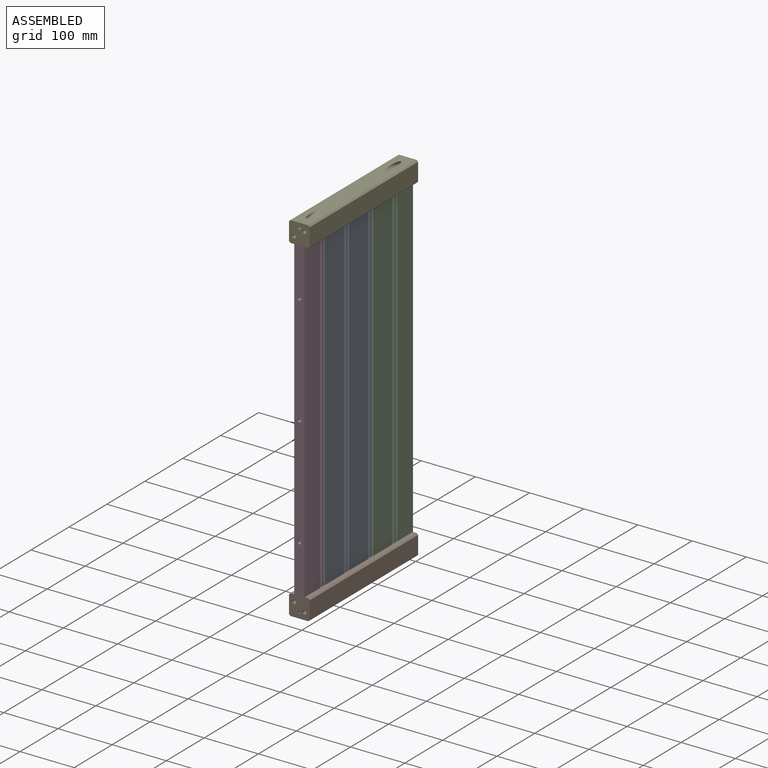
[diagram: assembled view]
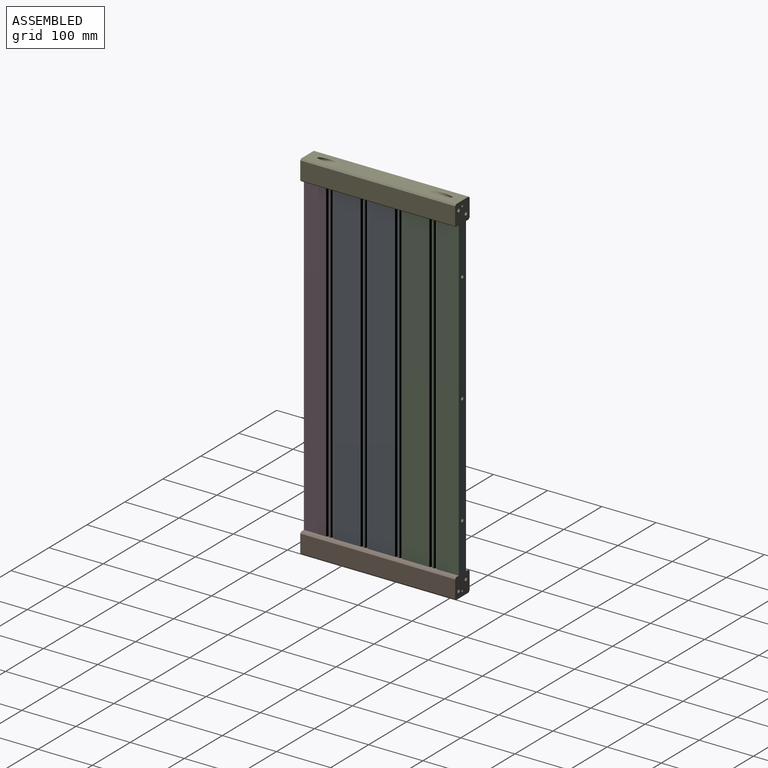
[diagram: assembled view, second angle]
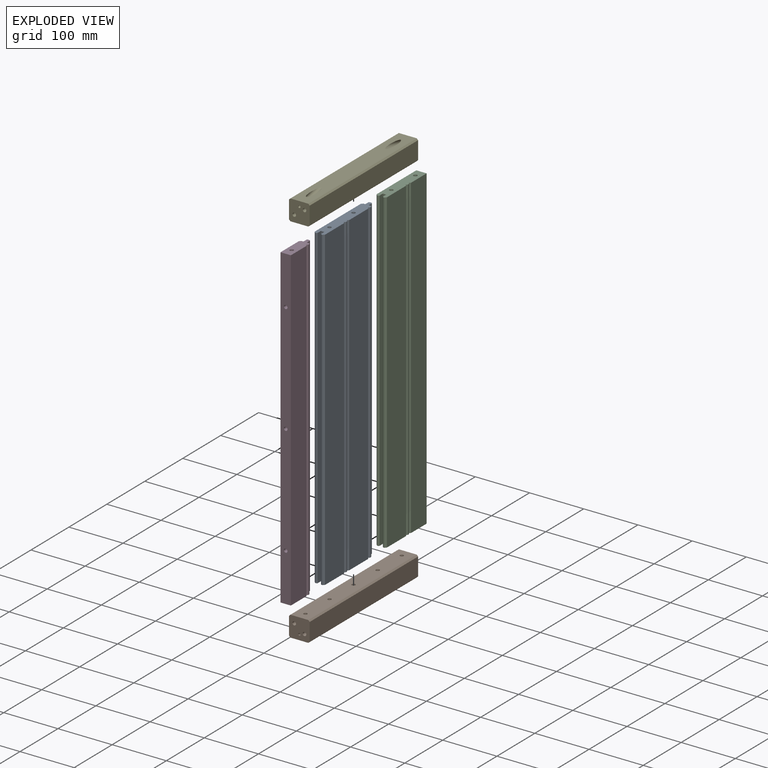
[diagram: exploded view]
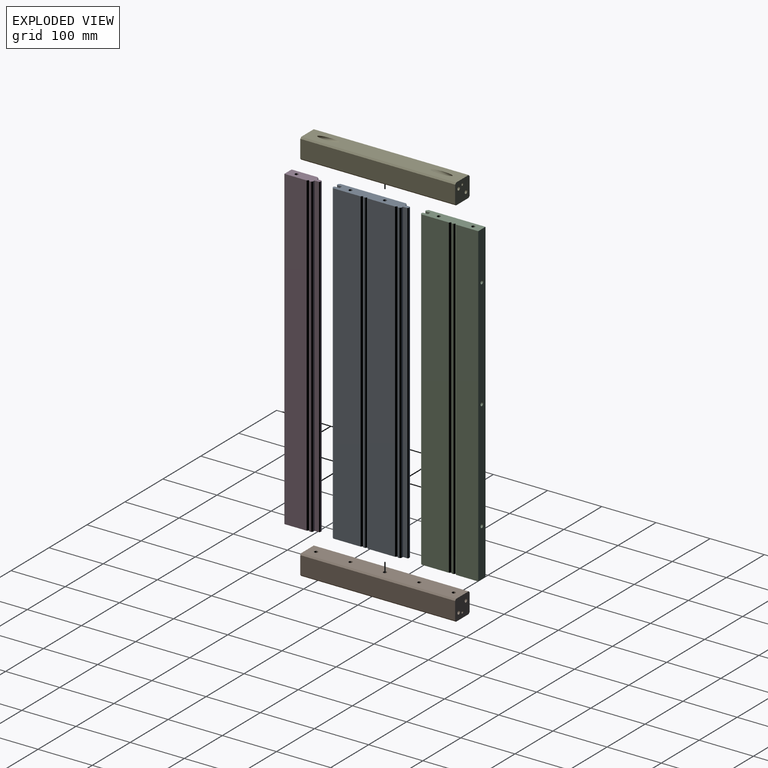
[diagram: exploded view, second angle]
ASSEMBLY  parts=5 mates=12
PART A: 35 faces, bbox 19.1x136.5x584.2 mm
  f0: plane 584.2x8.26mm, normal (-1,0,0), area 4822.6mm2, adj f1,f21,f22,f26
  f1: plane 584.2x3.53mm, normal (0,1,0), area 2059.9mm2, adj f0,f2,f21,f22
  f2: plane 584.2x2.82mm, normal (-0.71,0.71,0), area 2333.1mm2, adj f1,f3,f21,f22
  f3: plane 584.2x121.35mm, normal (-1,0,0), area 70894mm2, adj f2,f4,f21,f22
  f4: plane 584.2x2.82mm, normal (-0.71,-0.71,0), area 2333.1mm2, adj f3,f5,f21,f22
  f5: plane 584.2x2.26mm, normal (0,-1,0), area 1318mm2, adj f4,f21,f22,f24
  f6: plane 584.2x8.89mm, normal (1,0,0), area 5193.5mm2, adj f7,f21,f22,f24
  f7: plane 584.2x6.35mm, normal (0,-1,0), area 3709.7mm2, adj f6,f8,f21,f22
  f8: plane 584.2x8.89mm, normal (-1,0,0), area 5193.5mm2, adj f7,f21,f22,f23
  f9: plane 584.2x2.26mm, normal (0,-1,0), area 1318mm2, adj f10,f21,f22,f23
  f10: plane 584.2x2.82mm, normal (0.71,-0.71,0), area 2333.1mm2, adj f9,f11,f21,f22
  f11: plane 584.2x50.49mm, normal (1,0,0), area 29497.3mm2, adj f10,f12,f21,f22
  f12: plane 584.2x2.82mm, normal (0.71,0.71,0), area 2333.1mm2, adj f11,f13,f21,f22
  f13: cylinder r=3.81mm len=584.2mm, axis (0,0,1), area 5827.1mm2, adj f12,f14,f21,f22
  f14: plane 584.2x2.82mm, normal (0.71,-0.71,0), area 2333.1mm2, adj f13,f15,f21,f22
  f15: plane 584.2x50.49mm, normal (1,0,0), area 29497.3mm2, adj f14,f16,f21,f22
  f16: plane 584.2x2.82mm, normal (0.71,0.71,0), area 2333.1mm2, adj f15,f17,f21,f22
  f17: cylinder r=3.81mm len=584.2mm, axis (0,0,1), area 5827.1mm2, adj f16,f18,f21,f22
  f18: plane 584.2x3.53mm, normal (0,1,0), area 2059.9mm2, adj f17,f19,f21,f22
  f19: plane 584.2x8.26mm, normal (1,0,0), area 4822.6mm2, adj f18,f21,f22,f25
  f20: plane 584.2x3.81mm, normal (0,1,0), area 2225.8mm2, adj f21,f22,f25,f26
  f21: plane 136.53x19.05mm, normal (0,0,-1), area 2308.8mm2, adj f0,f1,f2,f3,f4,f5,f6,f7
  f22: plane 136.53x19.05mm, normal (0,0,1), area 2308.8mm2, adj f0,f1,f2,f3,f4,f5,f6,f7
  f23: plane 584.2x1.27mm, normal (-0.71,-0.71,0), area 1049.3mm2, adj f8,f9,f21,f22
  f24: plane 584.2x1.27mm, normal (0.71,-0.71,0), area 1049.3mm2, adj f5,f6,f21,f22
  f25: plane 584.2x1.27mm, normal (0.71,0.71,0), area 1049.3mm2, adj f19,f20,f21,f22
  f26: plane 584.2x1.27mm, normal (-0.71,0.71,0), area 1049.3mm2, adj f0,f20,f21,f22
  f27: cylinder r=3.3mm len=19.05mm, axis (0,0,1), area 395.2mm2, adj f22,f28
  f28: plane 6.6x6.6mm, normal (0,0,1), area 34.3mm2, adj f27
  f29: cylinder r=3.3mm len=19.05mm, axis (0,0,1), area 395.2mm2, adj f22,f30
  f30: plane 6.6x6.6mm, normal (0,0,1), area 34.3mm2, adj f29
  f31: cylinder r=3.3mm len=19.05mm, axis (0,0,-1), area 395.2mm2, adj f21,f32
  f32: plane 6.6x6.6mm, normal (0,0,-1), area 34.3mm2, adj f31
  f33: cylinder r=3.3mm len=19.05mm, axis (0,0,-1), area 395.2mm2, adj f21,f34
  f34: plane 6.6x6.6mm, normal (0,0,-1), area 34.3mm2, adj f33
PART B: 34 faces, bbox 38.3x47.7x287.9 mm
  f0: plane 285.75x33.02mm, normal (1,0,0), area 9435.5mm2, adj f6,f7,f8,f9
  f1: plane 285.75x33.02mm, normal (0,1,0), area 8829.8mm2, adj f4,f7,f8,f9,f26,f33
  f2: plane 285.75x33.02mm, normal (-1,0,0), area 9435.5mm2, adj f4,f5,f8,f9
  f3: plane 285.75x33.02mm, normal (0,-1,0), area 9264.2mm2, adj f5,f6,f8,f9,f10,f12,f14,f16
  f4: plane 285.75x2.54mm, normal (-0.71,0.71,0), area 1026.4mm2, adj f1,f2,f8,f9
  f5: plane 285.75x2.54mm, normal (-0.71,-0.71,0), area 1026.4mm2, adj f2,f3,f8,f9
  f6: plane 285.75x2.54mm, normal (0.71,-0.71,0), area 1026.4mm2, adj f0,f3,f8,f9
  f7: plane 285.75x2.54mm, normal (0.71,0.71,0), area 1026.4mm2, adj f0,f1,f8,f9
  f8: plane 38.31x38.31mm, normal (0,0,1), area 1356.8mm2, adj f0,f1,f2,f3,f4,f5,f6,f7
  f9: plane 38.31x38.31mm, normal (0,0,-1), area 1356.8mm2, adj f0,f1,f2,f3,f4,f5,f6,f7
  f10: cylinder r=3.3mm len=12.95mm, axis (0,-1,0), area 268.8mm2, adj f3,f11
  f11: plane 6.6x6.6mm, normal (0,-1,0), area 34.3mm2, adj f10
  f12: cylinder r=3.3mm len=12.95mm, axis (0,-1,0), area 268.8mm2, adj f3,f13
  f13: plane 6.6x6.6mm, normal (0,-1,0), area 34.3mm2, adj f12
  f14: cylinder r=3.3mm len=12.95mm, axis (0,-1,0), area 268.8mm2, adj f3,f15
  f15: plane 6.6x6.6mm, normal (0,-1,0), area 34.3mm2, adj f14
  f16: cylinder r=3.3mm len=12.95mm, axis (0,-1,0), area 268.8mm2, adj f3,f17
  f17: plane 6.6x6.6mm, normal (0,-1,0), area 34.3mm2, adj f16
  f18: cylinder r=3.3mm len=12.95mm, axis (0,-1,0), area 268.8mm2, adj f3,f19
  f19: plane 6.6x6.6mm, normal (0,-1,0), area 34.3mm2, adj f18
  f20: cylinder r=3.3mm len=19.05mm, axis (0,0,1), area 395.2mm2, adj f8,f21
  f21: plane 6.6x6.6mm, normal (0,0,1), area 34.3mm2, adj f20
  f22: cylinder r=3.3mm len=19.05mm, axis (0,0,1), area 395.2mm2, adj f8,f23
  f23: plane 6.6x6.6mm, normal (0,0,1), area 34.3mm2, adj f22
  f24: cylinder r=2.03mm len=13.8mm, axis (0,0.24,0.97), area 162.1mm2, adj f9,f25
  f25: plane 9.65x9.37mm, normal (0,0.24,0.97), area 60.2mm2, adj f24,f26
  f26: cylinder r=4.83mm len=47.08mm, axis (0,0.24,0.97), area 810.4mm2, adj f1,f25
  f27: cylinder r=3.3mm len=19.05mm, axis (0,0,-1), area 395.2mm2, adj f9,f28
  f28: plane 6.6x6.6mm, normal (0,0,-1), area 34.3mm2, adj f27
  f29: cylinder r=3.3mm len=19.05mm, axis (0,0,-1), area 395.2mm2, adj f9,f30
  f30: plane 6.6x6.6mm, normal (0,0,-1), area 34.3mm2, adj f29
  f31: cylinder r=2.03mm len=13.8mm, axis (0,0.24,-0.97), area 162.1mm2, adj f8,f32
  f32: plane 9.65x9.37mm, normal (0,0.24,-0.97), area 60.2mm2, adj f31,f33
  f33: cylinder r=4.83mm len=47.08mm, axis (0,0.24,-0.97), area 810.4mm2, adj f1,f32
PART C: 32 faces, bbox 19.1x107.4x584.2 mm
  f0: plane 584.2x41.12mm, normal (1,0,0), area 24022.8mm2, adj f12,f13,f14,f25
  f1: plane 584.2x104.62mm, normal (-1,0,0), area 61119.5mm2, adj f2,f13,f14,f25
  f2: plane 584.2x2.82mm, normal (-0.71,-0.71,0), area 2333.1mm2, adj f1,f3,f13,f14
  f3: plane 584.2x2.26mm, normal (0,-1,0), area 1318mm2, adj f2,f13,f14,f16
  f4: plane 584.2x8.89mm, normal (1,0,0), area 5193.5mm2, adj f5,f13,f14,f16
  f5: plane 584.2x6.35mm, normal (0,-1,0), area 3709.7mm2, adj f4,f6,f13,f14
  f6: plane 584.2x8.89mm, normal (-1,0,0), area 5193.5mm2, adj f5,f13,f14,f15
  f7: plane 584.2x2.26mm, normal (0,-1,0), area 1318mm2, adj f8,f13,f14,f15
  f8: plane 584.2x2.82mm, normal (0.71,-0.71,0), area 2333.1mm2, adj f7,f9,f13,f14
  f9: plane 584.2x50.49mm, normal (1,0,0), area 29497.3mm2, adj f8,f10,f13,f14
  f10: plane 584.2x2.82mm, normal (0.71,0.71,0), area 2333.1mm2, adj f9,f11,f13,f14
  f11: cylinder r=3.81mm len=584.2mm, axis (0,0,1), area 5827.1mm2, adj f10,f12,f13,f14
  f12: plane 584.2x2.82mm, normal (0.71,-0.71,0), area 2333.1mm2, adj f0,f11,f13,f14
  f13: plane 107.45x19.05mm, normal (0,0,-1), area 1890.8mm2, adj f0,f1,f2,f3,f4,f5,f6,f7
  f14: plane 107.45x19.05mm, normal (0,0,1), area 1890.8mm2, adj f0,f1,f2,f3,f4,f5,f6,f7
  f15: plane 584.2x1.27mm, normal (-0.71,-0.71,0), area 1049.3mm2, adj f6,f7,f13,f14
  f16: plane 584.2x1.27mm, normal (0.71,-0.71,0), area 1049.3mm2, adj f3,f4,f13,f14
  f17: cylinder r=3.3mm len=19.05mm, axis (0,0,1), area 395.2mm2, adj f14,f18
  f18: plane 6.6x6.6mm, normal (0,0,1), area 34.3mm2, adj f17
  f19: cylinder r=3.3mm len=19.05mm, axis (0,0,1), area 395.2mm2, adj f14,f20
  f20: plane 6.6x6.6mm, normal (0,0,1), area 34.3mm2, adj f19
  f21: cylinder r=3.3mm len=19.05mm, axis (0,0,-1), area 395.2mm2, adj f13,f22
  f22: plane 6.6x6.6mm, normal (0,0,-1), area 34.3mm2, adj f21
  f23: cylinder r=3.3mm len=19.05mm, axis (0,0,-1), area 395.2mm2, adj f13,f24
  f24: plane 6.6x6.6mm, normal (0,0,-1), area 34.3mm2, adj f23
  f25: plane 584.2x19.05mm, normal (0,1,0), area 11026.2mm2, adj f0,f1,f13,f14,f26,f28,f30
  f26: cylinder r=3.3mm len=19.05mm, axis (0,1,0), area 395.2mm2, adj f25,f27
  f27: plane 6.6x6.6mm, normal (0,1,0), area 34.3mm2, adj f26
  f28: cylinder r=3.3mm len=19.05mm, axis (0,1,0), area 395.2mm2, adj f25,f29
  f29: plane 6.6x6.6mm, normal (0,1,0), area 34.3mm2, adj f28
  f30: cylinder r=3.3mm len=19.05mm, axis (0,1,0), area 395.2mm2, adj f25,f31
  f31: plane 6.6x6.6mm, normal (0,1,0), area 34.3mm2, adj f30
PART D: 25 faces, bbox 19.1x60.8x584.2 mm
  f0: plane 584.2x48.48mm, normal (-1,0,0), area 28322.8mm2, adj f1,f2,f5,f18
  f1: plane 60.83x19.05mm, normal (0,0,-1), area 988.6mm2, adj f0,f3,f4,f5,f6,f7,f8,f9
  f2: plane 60.83x19.05mm, normal (0,0,1), area 988.6mm2, adj f0,f3,f4,f5,f6,f7,f8,f9
  f3: plane 584.2x8.26mm, normal (-1,0,0), area 4822.6mm2, adj f1,f2,f4,f13
  f4: plane 584.2x3.53mm, normal (0,1,0), area 2059.9mm2, adj f1,f2,f3,f5
  f5: plane 584.2x2.82mm, normal (-0.71,0.71,0), area 2333.1mm2, adj f0,f1,f2,f4
  f6: plane 584.2x41.12mm, normal (1,0,0), area 24022.8mm2, adj f1,f2,f7,f18
  f7: plane 584.2x2.82mm, normal (0.71,0.71,0), area 2333.1mm2, adj f1,f2,f6,f8
  f8: cylinder r=3.81mm len=584.2mm, axis (0,0,1), area 5827.1mm2, adj f1,f2,f7,f9
  f9: plane 584.2x3.53mm, normal (0,1,0), area 2059.9mm2, adj f1,f2,f8,f10
  f10: plane 584.2x8.26mm, normal (1,0,0), area 4822.6mm2, adj f1,f2,f9,f12
  f11: plane 584.2x3.81mm, normal (0,1,0), area 2225.8mm2, adj f1,f2,f12,f13
  f12: plane 584.2x1.27mm, normal (0.71,0.71,0), area 1049.3mm2, adj f1,f2,f10,f11
  f13: plane 584.2x1.27mm, normal (-0.71,0.71,0), area 1049.3mm2, adj f1,f2,f3,f11
  f14: cylinder r=3.3mm len=19.05mm, axis (0,0,1), area 395.2mm2, adj f2,f15
  f15: plane 6.6x6.6mm, normal (0,0,1), area 34.3mm2, adj f14
  f16: cylinder r=3.3mm len=19.05mm, axis (0,0,-1), area 395.2mm2, adj f1,f17
  f17: plane 6.6x6.6mm, normal (0,0,-1), area 34.3mm2, adj f16
  f18: plane 584.2x19.05mm, normal (0,-1,0), area 11026.2mm2, adj f0,f1,f2,f6,f19,f21,f23
  f19: cylinder r=3.3mm len=19.05mm, axis (0,-1,0), area 395.2mm2, adj f18,f20
  f20: plane 6.6x6.6mm, normal (0,-1,0), area 34.3mm2, adj f19
  f21: cylinder r=3.3mm len=19.05mm, axis (0,-1,0), area 395.2mm2, adj f18,f22
  f22: plane 6.6x6.6mm, normal (0,-1,0), area 34.3mm2, adj f21
  f23: cylinder r=3.3mm len=19.05mm, axis (0,-1,0), area 395.2mm2, adj f18,f24
  f24: plane 6.6x6.6mm, normal (0,-1,0), area 34.3mm2, adj f23
PART E: same geometry as B
PLACE A t=(-18.5,-54.62,38.4)mm fixed
PLACE B rot(axis=(0,0.71,-0.71),180deg) t=(-18.5,-22.87,-272.75)mm
PLACE C t=(-18.5,72.38,38.4)mm
PLACE D t=(-18.5,-181.62,38.4)mm
PLACE E rot(axis=(0,-0.71,-0.71),180deg) t=(-18.5,-22.87,349.55)mm
MATE planar A.f1 <-> C.f3  axis (0,1,0) through (-23.44,12.56,38.4)mm
MATE cylindrical B.f10 <-> A.f29  axis (0,0,1) through (-18.5,-22.87,-260.17)mm
MATE planar B.f10 <-> A.f21  axis (0,0,1) through (-18.5,-22.87,-253.7)mm
MATE planar A.f5 <-> D.f4  axis (0,-1,0) through (-24.07,-114.44,38.4)mm
MATE planar A.f3 <-> C.f1  axis (-1,0,0) through (-28.02,-50.94,38.4)mm
MATE planar D.f0 <-> A.f3  axis (-1,0,0) through (-28.02,-141.5,38.4)mm
MATE planar E.f10 <-> A.f22  axis (0,0,-1) through (-18.5,-22.87,330.5)mm
MATE parallel E.f0 <-> A.f3  axis (-1,0,0) through (-37.55,-22.87,366.06)mm
MATE parallel B.f0 <-> A.f3  axis (-1,0,0) through (-37.55,-22.87,-272.75)mm
MATE cylindrical E.f10 <-> A.f29  axis (0,0,-1) through (-18.5,-22.87,330.5)mm
MATE planar C.f14 <-> A.f22  axis (0,0,1) through (-18.56,67.95,330.5)mm
MATE planar D.f2 <-> A.f22  axis (0,0,1) through (-18.55,-138.24,330.5)mm
